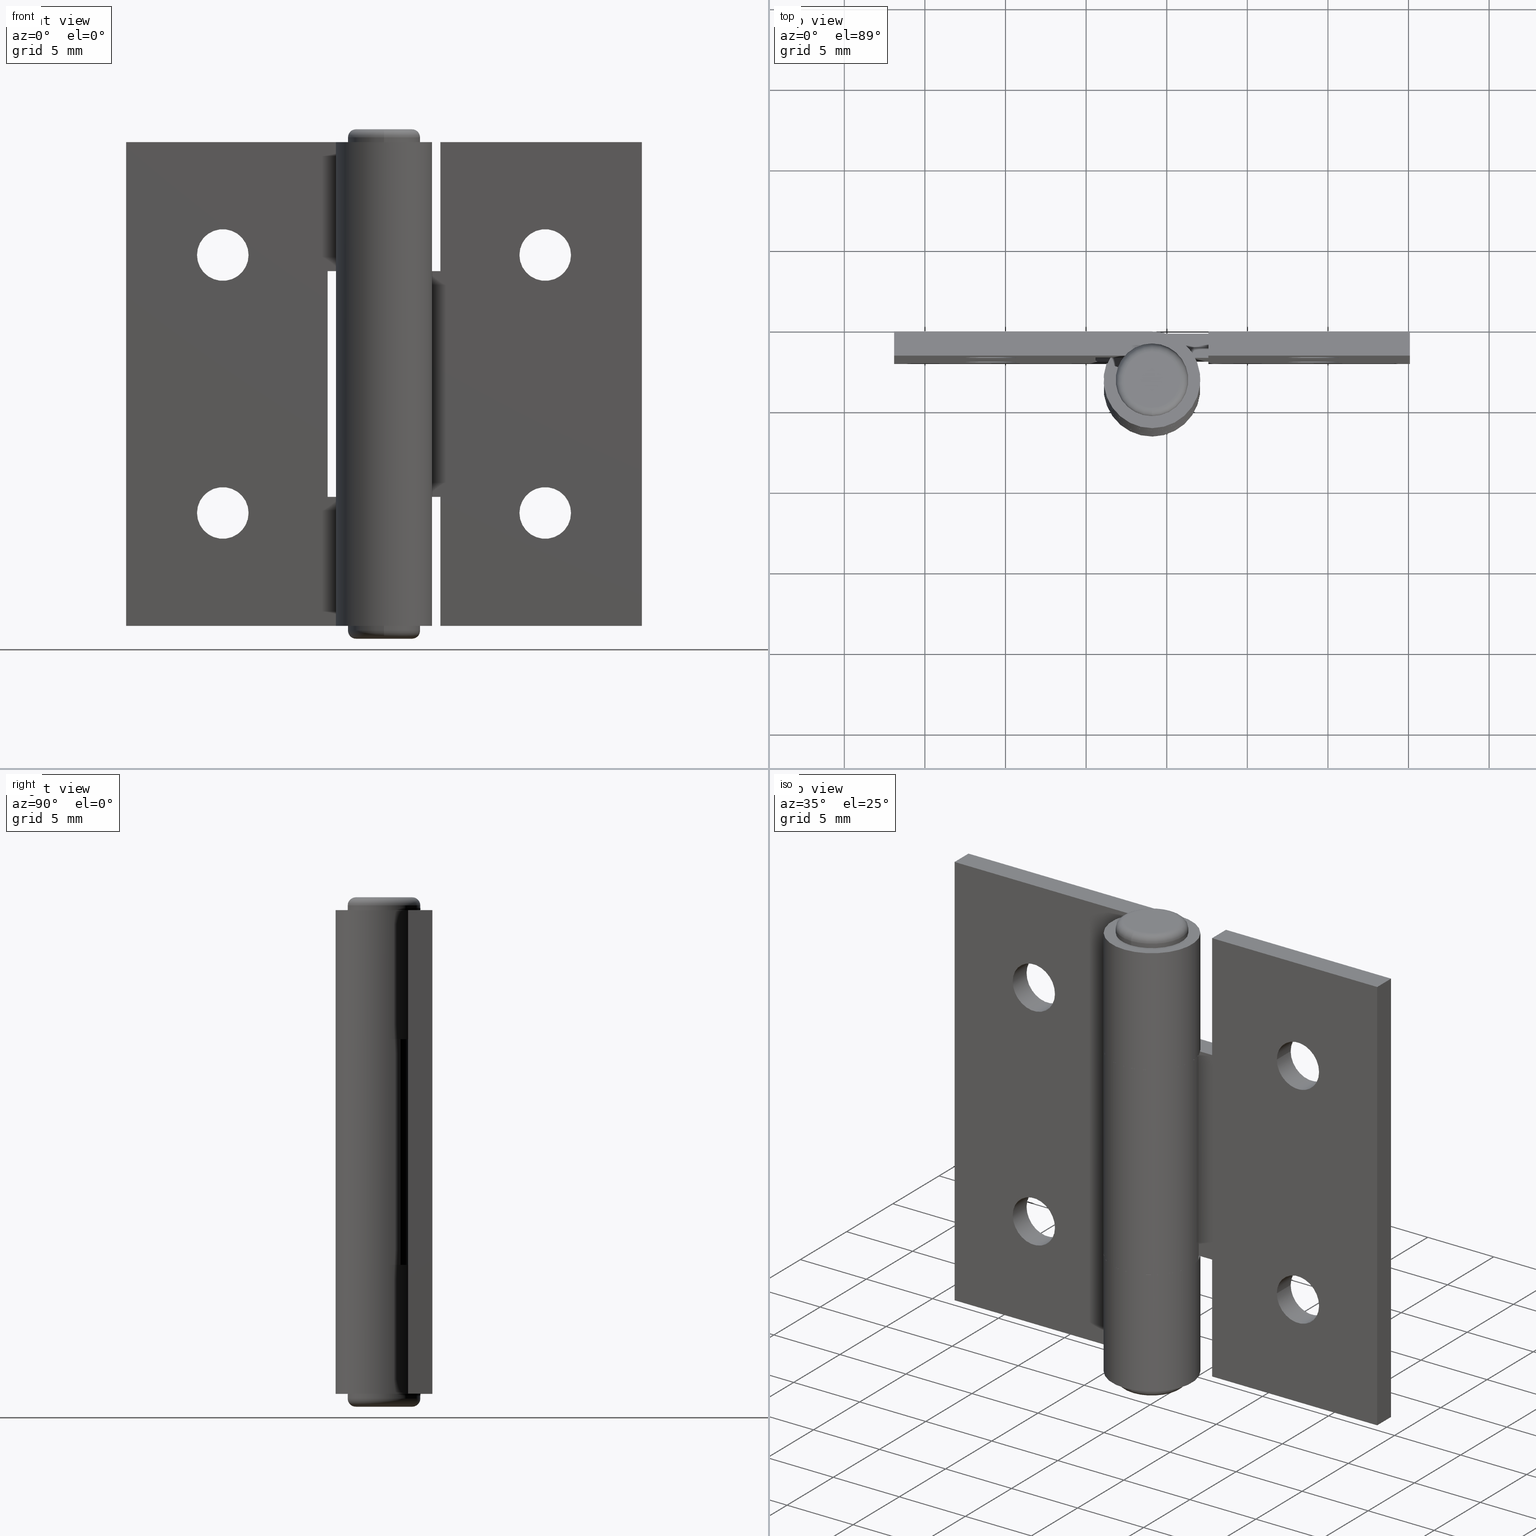
[diagram: canonical four-view strip — front | top / right | iso, engineering-drawing reading convention]
A machine part, canonical four-view strip (front | top / right | iso — engineering-drawing reading convention). The complete STEP part file that produces these views, byte-faithful:
ISO-10303-21;
HEADER;
/* Generated by software containing ST-Developer
 * from STEP Tools, Inc. (www.steptools.com) 
 */

FILE_DESCRIPTION(
/* description */ (''),
/* implementation_level */ '2;1');

FILE_NAME(
/* name */ '\\\\SYNOLOGYNAS\\web\\db2\\HG3032-15\\HG3032-15.stp',
/* time_stamp */ '2025-10-27T19:23:56+09:00',
/* author */ ('user'),
/* organization */ (''),
/* preprocessor_version */ 'ST-DEVELOPER v15.6',
/* originating_system */ 'Autodesk Inventor 2015',
/* authorisation */ '');

FILE_SCHEMA (('AUTOMOTIVE_DESIGN { 1 0 10303 214 3 1 1 }'));
ENDSEC;

DATA;
#10=MECHANICAL_DESIGN_GEOMETRIC_PRESENTATION_REPRESENTATION('',(#25,#27,
#26),#1131);
#11=ITEM_DEFINED_TRANSFORMATION($,$,#668,#738);
#12=ITEM_DEFINED_TRANSFORMATION($,$,#691,#739);
#13=(
REPRESENTATION_RELATIONSHIP($,$,#1146,#1148)
REPRESENTATION_RELATIONSHIP_WITH_TRANSFORMATION(#11)
SHAPE_REPRESENTATION_RELATIONSHIP()
);
#14=(
REPRESENTATION_RELATIONSHIP($,$,#1147,#1148)
REPRESENTATION_RELATIONSHIP_WITH_TRANSFORMATION(#12)
SHAPE_REPRESENTATION_RELATIONSHIP()
);
#15=CONTEXT_DEPENDENT_SHAPE_REPRESENTATION(#13,#1144);
#16=CONTEXT_DEPENDENT_SHAPE_REPRESENTATION(#14,#1145);
#17=NEXT_ASSEMBLY_USAGE_OCCURRENCE('HG3032-15-P1:1',$,$,#1152,#1150,$);
#18=NEXT_ASSEMBLY_USAGE_OCCURRENCE('HG3032-15-P2:1',$,$,#1152,#1151,$);
#19=TOROIDAL_SURFACE('',#720,1.75,0.5);
#20=TOROIDAL_SURFACE('',#726,1.75,0.5);
#21=SHAPE_REPRESENTATION_RELATIONSHIP('SRR','None',#1146,#23);
#22=SHAPE_REPRESENTATION_RELATIONSHIP('SRR','None',#1147,#24);
#23=ADVANCED_BREP_SHAPE_REPRESENTATION($,(#28),#1128);
#24=ADVANCED_BREP_SHAPE_REPRESENTATION($,(#29,#30),#1129);
#25=STYLED_ITEM('',(#1166),#28);
#26=STYLED_ITEM('',(#1167),#29);
#27=STYLED_ITEM('',(#1167),#30);
#28=MANIFOLD_SOLID_BREP('\X2\C194B9ACB4DC\X0\1',#665);
#29=MANIFOLD_SOLID_BREP('\X2\C194B9ACB4DC\X0\1',#666);
#30=MANIFOLD_SOLID_BREP('\X2\C194B9ACB4DC\X0\3',#667);
#31=LINE('',#952,#85);
#32=LINE('',#954,#86);
#33=LINE('',#956,#87);
#34=LINE('',#957,#88);
#35=LINE('',#960,#89);
#36=LINE('',#964,#90);
#37=LINE('',#967,#91);
#38=LINE('',#971,#92);
#39=LINE('',#973,#93);
#40=LINE('',#975,#94);
#41=LINE('',#979,#95);
#42=LINE('',#983,#96);
#43=LINE('',#985,#97);
#44=LINE('',#986,#98);
#45=LINE('',#989,#99);
#46=LINE('',#991,#100);
#47=LINE('',#992,#101);
#48=LINE('',#995,#102);
#49=LINE('',#996,#103);
#50=LINE('',#997,#104);
#51=LINE('',#999,#105);
#52=LINE('',#1001,#106);
#53=LINE('',#1002,#107);
#54=LINE('',#1004,#108);
#55=LINE('',#1007,#109);
#56=LINE('',#1009,#110);
#57=LINE('',#1025,#111);
#58=LINE('',#1027,#112);
#59=LINE('',#1029,#113);
#60=LINE('',#1030,#114);
#61=LINE('',#1033,#115);
#62=LINE('',#1035,#116);
#63=LINE('',#1039,#117);
#64=LINE('',#1043,#118);
#65=LINE('',#1047,#119);
#66=LINE('',#1050,#120);
#67=LINE('',#1053,#121);
#68=LINE('',#1055,#122);
#69=LINE('',#1057,#123);
#70=LINE('',#1059,#124);
#71=LINE('',#1060,#125);
#72=LINE('',#1063,#126);
#73=LINE('',#1067,#127);
#74=LINE('',#1068,#128);
#75=LINE('',#1071,#129);
#76=LINE('',#1075,#130);
#77=LINE('',#1076,#131);
#78=LINE('',#1079,#132);
#79=LINE('',#1081,#133);
#80=LINE('',#1082,#134);
#81=LINE('',#1084,#135);
#82=LINE('',#1089,#136);
#83=LINE('',#1092,#137);
#84=LINE('',#1094,#138);
#85=VECTOR('',#756,8.);
#86=VECTOR('',#757,1.5);
#87=VECTOR('',#758,8.);
#88=VECTOR('',#759,1.5);
#89=VECTOR('',#762,3.5);
#90=VECTOR('',#765,1.5);
#91=VECTOR('',#768,3.5);
#92=VECTOR('',#771,3.5);
#93=VECTOR('',#772,1.5);
#94=VECTOR('',#773,3.5);
#95=VECTOR('',#776,1.5);
#96=VECTOR('',#781,8.);
#97=VECTOR('',#782,1.5);
#98=VECTOR('',#783,8.);
#99=VECTOR('',#786,12.5);
#100=VECTOR('',#787,1.5);
#101=VECTOR('',#788,12.5);
#102=VECTOR('',#791,30.);
#103=VECTOR('',#792,12.5);
#104=VECTOR('',#793,14.);
#105=VECTOR('',#796,14.);
#106=VECTOR('',#797,12.5);
#107=VECTOR('',#798,30.);
#108=VECTOR('',#801,1.5);
#109=VECTOR('',#806,14.);
#110=VECTOR('',#809,14.);
#111=VECTOR('',#828,14.);
#112=VECTOR('',#829,1.5);
#113=VECTOR('',#830,14.);
#114=VECTOR('',#831,1.5);
#115=VECTOR('',#834,3.5);
#116=VECTOR('',#835,3.5);
#117=VECTOR('',#838,1.5);
#118=VECTOR('',#843,3.5);
#119=VECTOR('',#846,1.5);
#120=VECTOR('',#849,3.5);
#121=VECTOR('',#852,8.);
#122=VECTOR('',#853,16.);
#123=VECTOR('',#854,30.);
#124=VECTOR('',#855,16.);
#125=VECTOR('',#856,8.);
#126=VECTOR('',#859,8.);
#127=VECTOR('',#864,8.);
#128=VECTOR('',#865,1.5);
#129=VECTOR('',#868,8.);
#130=VECTOR('',#873,16.);
#131=VECTOR('',#874,1.5);
#132=VECTOR('',#877,8.);
#133=VECTOR('',#878,16.);
#134=VECTOR('',#879,30.);
#135=VECTOR('',#882,1.5);
#136=VECTOR('',#887,1.5);
#137=VECTOR('',#892,8.);
#138=VECTOR('',#895,8.);
#139=PLANE('',#675);
#140=PLANE('',#676);
#141=PLANE('',#679);
#142=PLANE('',#682);
#143=PLANE('',#683);
#144=PLANE('',#684);
#145=PLANE('',#685);
#146=PLANE('',#686);
#147=PLANE('',#687);
#148=PLANE('',#690);
#149=PLANE('',#698);
#150=PLANE('',#699);
#151=PLANE('',#702);
#152=PLANE('',#705);
#153=PLANE('',#708);
#154=PLANE('',#711);
#155=PLANE('',#712);
#156=PLANE('',#713);
#157=PLANE('',#714);
#158=PLANE('',#719);
#159=PLANE('',#725);
#160=PLANE('',#729);
#161=PLANE('',#735);
#162=PLANE('',#736);
#163=FACE_BOUND('',#222,.T.);
#164=FACE_BOUND('',#224,.T.);
#165=FACE_BOUND('',#231,.T.);
#166=FACE_BOUND('',#232,.T.);
#167=FACE_BOUND('',#234,.T.);
#168=FACE_BOUND('',#235,.T.);
#169=FACE_BOUND('',#242,.T.);
#170=FACE_BOUND('',#244,.T.);
#171=FACE_BOUND('',#249,.T.);
#172=FACE_BOUND('',#250,.T.);
#173=FACE_BOUND('',#256,.T.);
#174=FACE_BOUND('',#257,.T.);
#175=FACE_BOUND('',#264,.T.);
#176=FACE_BOUND('',#266,.T.);
#177=FACE_BOUND('',#269,.T.);
#178=FACE_BOUND('',#272,.T.);
#179=FACE_BOUND('',#274,.T.);
#180=FACE_BOUND('',#276,.T.);
#181=FACE_BOUND('',#278,.T.);
#182=FACE_OUTER_BOUND('',#221,.T.);
#183=FACE_OUTER_BOUND('',#223,.T.);
#184=FACE_OUTER_BOUND('',#225,.T.);
#185=FACE_OUTER_BOUND('',#226,.T.);
#186=FACE_OUTER_BOUND('',#227,.T.);
#187=FACE_OUTER_BOUND('',#228,.T.);
#188=FACE_OUTER_BOUND('',#229,.T.);
#189=FACE_OUTER_BOUND('',#230,.T.);
#190=FACE_OUTER_BOUND('',#233,.T.);
#191=FACE_OUTER_BOUND('',#236,.T.);
#192=FACE_OUTER_BOUND('',#237,.T.);
#193=FACE_OUTER_BOUND('',#238,.T.);
#194=FACE_OUTER_BOUND('',#239,.T.);
#195=FACE_OUTER_BOUND('',#240,.T.);
#196=FACE_OUTER_BOUND('',#241,.T.);
#197=FACE_OUTER_BOUND('',#243,.T.);
#198=FACE_OUTER_BOUND('',#245,.T.);
#199=FACE_OUTER_BOUND('',#246,.T.);
#200=FACE_OUTER_BOUND('',#247,.T.);
#201=FACE_OUTER_BOUND('',#248,.T.);
#202=FACE_OUTER_BOUND('',#251,.T.);
#203=FACE_OUTER_BOUND('',#252,.T.);
#204=FACE_OUTER_BOUND('',#253,.T.);
#205=FACE_OUTER_BOUND('',#254,.T.);
#206=FACE_OUTER_BOUND('',#255,.T.);
#207=FACE_OUTER_BOUND('',#258,.T.);
#208=FACE_OUTER_BOUND('',#259,.T.);
#209=FACE_OUTER_BOUND('',#260,.T.);
#210=FACE_OUTER_BOUND('',#261,.T.);
#211=FACE_OUTER_BOUND('',#262,.T.);
#212=FACE_OUTER_BOUND('',#263,.T.);
#213=FACE_OUTER_BOUND('',#265,.T.);
#214=FACE_OUTER_BOUND('',#267,.T.);
#215=FACE_OUTER_BOUND('',#268,.T.);
#216=FACE_OUTER_BOUND('',#270,.T.);
#217=FACE_OUTER_BOUND('',#271,.T.);
#218=FACE_OUTER_BOUND('',#273,.T.);
#219=FACE_OUTER_BOUND('',#275,.T.);
#220=FACE_OUTER_BOUND('',#277,.T.);
#221=EDGE_LOOP('',(#449));
#222=EDGE_LOOP('',(#450));
#223=EDGE_LOOP('',(#451));
#224=EDGE_LOOP('',(#452));
#225=EDGE_LOOP('',(#453,#454,#455,#456));
#226=EDGE_LOOP('',(#457,#458,#459,#460,#461,#462));
#227=EDGE_LOOP('',(#463,#464,#465,#466,#467,#468));
#228=EDGE_LOOP('',(#469,#470,#471,#472));
#229=EDGE_LOOP('',(#473,#474,#475,#476));
#230=EDGE_LOOP('',(#477,#478,#479,#480,#481,#482,#483,#484));
#231=EDGE_LOOP('',(#485));
#232=EDGE_LOOP('',(#486));
#233=EDGE_LOOP('',(#487,#488,#489,#490,#491,#492,#493,#494));
#234=EDGE_LOOP('',(#495));
#235=EDGE_LOOP('',(#496));
#236=EDGE_LOOP('',(#497,#498,#499,#500));
#237=EDGE_LOOP('',(#501,#502,#503,#504));
#238=EDGE_LOOP('',(#505,#506,#507,#508));
#239=EDGE_LOOP('',(#509,#510,#511,#512));
#240=EDGE_LOOP('',(#513,#514,#515,#516));
#241=EDGE_LOOP('',(#517));
#242=EDGE_LOOP('',(#518));
#243=EDGE_LOOP('',(#519));
#244=EDGE_LOOP('',(#520));
#245=EDGE_LOOP('',(#521,#522,#523,#524));
#246=EDGE_LOOP('',(#525,#526,#527,#528,#529,#530));
#247=EDGE_LOOP('',(#531,#532,#533,#534,#535,#536));
#248=EDGE_LOOP('',(#537,#538,#539,#540,#541,#542,#543,#544));
#249=EDGE_LOOP('',(#545));
#250=EDGE_LOOP('',(#546));
#251=EDGE_LOOP('',(#547,#548,#549,#550));
#252=EDGE_LOOP('',(#551,#552,#553,#554));
#253=EDGE_LOOP('',(#555,#556,#557,#558));
#254=EDGE_LOOP('',(#559,#560,#561,#562,#563,#564));
#255=EDGE_LOOP('',(#565,#566,#567,#568,#569,#570,#571,#572));
#256=EDGE_LOOP('',(#573));
#257=EDGE_LOOP('',(#574));
#258=EDGE_LOOP('',(#575,#576,#577,#578));
#259=EDGE_LOOP('',(#579,#580,#581,#582,#583,#584));
#260=EDGE_LOOP('',(#585,#586,#587,#588));
#261=EDGE_LOOP('',(#589,#590,#591,#592));
#262=EDGE_LOOP('',(#593,#594,#595,#596));
#263=EDGE_LOOP('',(#597));
#264=EDGE_LOOP('',(#598));
#265=EDGE_LOOP('',(#599));
#266=EDGE_LOOP('',(#600));
#267=EDGE_LOOP('',(#601));
#268=EDGE_LOOP('',(#602));
#269=EDGE_LOOP('',(#603));
#270=EDGE_LOOP('',(#604));
#271=EDGE_LOOP('',(#605));
#272=EDGE_LOOP('',(#606));
#273=EDGE_LOOP('',(#607));
#274=EDGE_LOOP('',(#608));
#275=EDGE_LOOP('',(#609));
#276=EDGE_LOOP('',(#610));
#277=EDGE_LOOP('',(#611));
#278=EDGE_LOOP('',(#612));
#279=CIRCLE('',#670,1.6);
#280=CIRCLE('',#671,1.6);
#281=CIRCLE('',#673,1.6);
#282=CIRCLE('',#674,1.6);
#283=CIRCLE('',#677,1.5);
#284=CIRCLE('',#678,3.);
#285=CIRCLE('',#680,3.);
#286=CIRCLE('',#681,1.5);
#287=CIRCLE('',#693,1.6);
#288=CIRCLE('',#694,1.6);
#289=CIRCLE('',#696,1.6);
#290=CIRCLE('',#697,1.6);
#291=CIRCLE('',#700,3.);
#292=CIRCLE('',#701,1.5);
#293=CIRCLE('',#703,1.5);
#294=CIRCLE('',#704,3.);
#295=CIRCLE('',#707,1.5);
#296=CIRCLE('',#710,3.);
#297=CIRCLE('',#715,3.);
#298=CIRCLE('',#716,1.5);
#299=CIRCLE('',#721,2.25);
#300=CIRCLE('',#722,1.75);
#301=CIRCLE('',#724,2.25);
#302=CIRCLE('',#727,1.75);
#303=CIRCLE('',#728,2.25);
#304=CIRCLE('',#731,2.25);
#305=CIRCLE('',#733,1.5);
#306=CIRCLE('',#734,1.5);
#307=VERTEX_POINT('',#940);
#308=VERTEX_POINT('',#942);
#309=VERTEX_POINT('',#945);
#310=VERTEX_POINT('',#947);
#311=VERTEX_POINT('',#950);
#312=VERTEX_POINT('',#951);
#313=VERTEX_POINT('',#953);
#314=VERTEX_POINT('',#955);
#315=VERTEX_POINT('',#959);
#316=VERTEX_POINT('',#961);
#317=VERTEX_POINT('',#963);
#318=VERTEX_POINT('',#965);
#319=VERTEX_POINT('',#969);
#320=VERTEX_POINT('',#970);
#321=VERTEX_POINT('',#972);
#322=VERTEX_POINT('',#974);
#323=VERTEX_POINT('',#976);
#324=VERTEX_POINT('',#978);
#325=VERTEX_POINT('',#982);
#326=VERTEX_POINT('',#984);
#327=VERTEX_POINT('',#988);
#328=VERTEX_POINT('',#990);
#329=VERTEX_POINT('',#994);
#330=VERTEX_POINT('',#1000);
#331=VERTEX_POINT('',#1013);
#332=VERTEX_POINT('',#1015);
#333=VERTEX_POINT('',#1018);
#334=VERTEX_POINT('',#1020);
#335=VERTEX_POINT('',#1023);
#336=VERTEX_POINT('',#1024);
#337=VERTEX_POINT('',#1026);
#338=VERTEX_POINT('',#1028);
#339=VERTEX_POINT('',#1032);
#340=VERTEX_POINT('',#1034);
#341=VERTEX_POINT('',#1036);
#342=VERTEX_POINT('',#1038);
#343=VERTEX_POINT('',#1042);
#344=VERTEX_POINT('',#1044);
#345=VERTEX_POINT('',#1046);
#346=VERTEX_POINT('',#1048);
#347=VERTEX_POINT('',#1052);
#348=VERTEX_POINT('',#1054);
#349=VERTEX_POINT('',#1056);
#350=VERTEX_POINT('',#1058);
#351=VERTEX_POINT('',#1062);
#352=VERTEX_POINT('',#1066);
#353=VERTEX_POINT('',#1070);
#354=VERTEX_POINT('',#1074);
#355=VERTEX_POINT('',#1078);
#356=VERTEX_POINT('',#1080);
#357=VERTEX_POINT('',#1086);
#358=VERTEX_POINT('',#1088);
#359=VERTEX_POINT('',#1097);
#360=VERTEX_POINT('',#1099);
#361=VERTEX_POINT('',#1102);
#362=VERTEX_POINT('',#1106);
#363=VERTEX_POINT('',#1108);
#364=VERTEX_POINT('',#1112);
#365=VERTEX_POINT('',#1115);
#366=VERTEX_POINT('',#1117);
#367=EDGE_CURVE('',#307,#307,#279,.T.);
#368=EDGE_CURVE('',#308,#308,#280,.T.);
#369=EDGE_CURVE('',#309,#309,#281,.T.);
#370=EDGE_CURVE('',#310,#310,#282,.T.);
#371=EDGE_CURVE('',#311,#312,#31,.T.);
#372=EDGE_CURVE('',#313,#311,#32,.T.);
#373=EDGE_CURVE('',#314,#313,#33,.T.);
#374=EDGE_CURVE('',#312,#314,#34,.T.);
#375=EDGE_CURVE('',#315,#311,#35,.T.);
#376=EDGE_CURVE('',#316,#315,#283,.T.);
#377=EDGE_CURVE('',#317,#316,#36,.T.);
#378=EDGE_CURVE('',#318,#317,#284,.T.);
#379=EDGE_CURVE('',#313,#318,#37,.T.);
#380=EDGE_CURVE('',#319,#320,#38,.T.);
#381=EDGE_CURVE('',#321,#319,#39,.T.);
#382=EDGE_CURVE('',#322,#321,#40,.T.);
#383=EDGE_CURVE('',#323,#322,#285,.T.);
#384=EDGE_CURVE('',#324,#323,#41,.T.);
#385=EDGE_CURVE('',#320,#324,#286,.T.);
#386=EDGE_CURVE('',#325,#319,#42,.T.);
#387=EDGE_CURVE('',#326,#325,#43,.T.);
#388=EDGE_CURVE('',#321,#326,#44,.T.);
#389=EDGE_CURVE('',#314,#327,#45,.T.);
#390=EDGE_CURVE('',#327,#328,#46,.T.);
#391=EDGE_CURVE('',#328,#312,#47,.T.);
#392=EDGE_CURVE('',#328,#329,#48,.T.);
#393=EDGE_CURVE('',#325,#329,#49,.T.);
#394=EDGE_CURVE('',#320,#315,#50,.T.);
#395=EDGE_CURVE('',#318,#322,#51,.T.);
#396=EDGE_CURVE('',#330,#326,#52,.T.);
#397=EDGE_CURVE('',#327,#330,#53,.T.);
#398=EDGE_CURVE('',#329,#330,#54,.T.);
#399=EDGE_CURVE('',#317,#323,#55,.T.);
#400=EDGE_CURVE('',#316,#324,#56,.T.);
#401=EDGE_CURVE('',#331,#331,#287,.T.);
#402=EDGE_CURVE('',#332,#332,#288,.T.);
#403=EDGE_CURVE('',#333,#333,#289,.T.);
#404=EDGE_CURVE('',#334,#334,#290,.T.);
#405=EDGE_CURVE('',#335,#336,#57,.T.);
#406=EDGE_CURVE('',#337,#335,#58,.T.);
#407=EDGE_CURVE('',#338,#337,#59,.T.);
#408=EDGE_CURVE('',#338,#336,#60,.T.);
#409=EDGE_CURVE('',#336,#339,#61,.T.);
#410=EDGE_CURVE('',#340,#338,#62,.T.);
#411=EDGE_CURVE('',#341,#340,#291,.T.);
#412=EDGE_CURVE('',#342,#341,#63,.T.);
#413=EDGE_CURVE('',#339,#342,#292,.T.);
#414=EDGE_CURVE('',#343,#335,#64,.T.);
#415=EDGE_CURVE('',#344,#343,#293,.T.);
#416=EDGE_CURVE('',#345,#344,#65,.T.);
#417=EDGE_CURVE('',#346,#345,#294,.T.);
#418=EDGE_CURVE('',#337,#346,#66,.T.);
#419=EDGE_CURVE('',#339,#347,#67,.T.);
#420=EDGE_CURVE('',#348,#347,#68,.T.);
#421=EDGE_CURVE('',#348,#349,#69,.T.);
#422=EDGE_CURVE('',#350,#349,#70,.T.);
#423=EDGE_CURVE('',#350,#343,#71,.T.);
#424=EDGE_CURVE('',#351,#342,#72,.T.);
#425=EDGE_CURVE('',#347,#351,#295,.T.);
#426=EDGE_CURVE('',#352,#341,#73,.T.);
#427=EDGE_CURVE('',#351,#352,#74,.T.);
#428=EDGE_CURVE('',#353,#340,#75,.T.);
#429=EDGE_CURVE('',#352,#353,#296,.T.);
#430=EDGE_CURVE('',#353,#354,#76,.T.);
#431=EDGE_CURVE('',#354,#348,#77,.T.);
#432=EDGE_CURVE('',#346,#355,#78,.T.);
#433=EDGE_CURVE('',#356,#355,#79,.T.);
#434=EDGE_CURVE('',#354,#356,#80,.T.);
#435=EDGE_CURVE('',#349,#356,#81,.T.);
#436=EDGE_CURVE('',#355,#357,#297,.T.);
#437=EDGE_CURVE('',#357,#358,#82,.T.);
#438=EDGE_CURVE('',#358,#350,#298,.T.);
#439=EDGE_CURVE('',#345,#357,#83,.T.);
#440=EDGE_CURVE('',#344,#358,#84,.T.);
#441=EDGE_CURVE('',#359,#359,#299,.T.);
#442=EDGE_CURVE('',#360,#360,#300,.T.);
#443=EDGE_CURVE('',#361,#361,#301,.T.);
#444=EDGE_CURVE('',#362,#362,#302,.T.);
#445=EDGE_CURVE('',#363,#363,#303,.T.);
#446=EDGE_CURVE('',#364,#364,#304,.T.);
#447=EDGE_CURVE('',#365,#365,#305,.T.);
#448=EDGE_CURVE('',#366,#366,#306,.T.);
#449=ORIENTED_EDGE('',*,*,#367,.F.);
#450=ORIENTED_EDGE('',*,*,#368,.F.);
#451=ORIENTED_EDGE('',*,*,#369,.F.);
#452=ORIENTED_EDGE('',*,*,#370,.F.);
#453=ORIENTED_EDGE('',*,*,#371,.F.);
#454=ORIENTED_EDGE('',*,*,#372,.F.);
#455=ORIENTED_EDGE('',*,*,#373,.F.);
#456=ORIENTED_EDGE('',*,*,#374,.F.);
#457=ORIENTED_EDGE('',*,*,#375,.F.);
#458=ORIENTED_EDGE('',*,*,#376,.F.);
#459=ORIENTED_EDGE('',*,*,#377,.F.);
#460=ORIENTED_EDGE('',*,*,#378,.F.);
#461=ORIENTED_EDGE('',*,*,#379,.F.);
#462=ORIENTED_EDGE('',*,*,#372,.T.);
#463=ORIENTED_EDGE('',*,*,#380,.F.);
#464=ORIENTED_EDGE('',*,*,#381,.F.);
#465=ORIENTED_EDGE('',*,*,#382,.F.);
#466=ORIENTED_EDGE('',*,*,#383,.F.);
#467=ORIENTED_EDGE('',*,*,#384,.F.);
#468=ORIENTED_EDGE('',*,*,#385,.F.);
#469=ORIENTED_EDGE('',*,*,#386,.F.);
#470=ORIENTED_EDGE('',*,*,#387,.F.);
#471=ORIENTED_EDGE('',*,*,#388,.F.);
#472=ORIENTED_EDGE('',*,*,#381,.T.);
#473=ORIENTED_EDGE('',*,*,#374,.T.);
#474=ORIENTED_EDGE('',*,*,#389,.T.);
#475=ORIENTED_EDGE('',*,*,#390,.T.);
#476=ORIENTED_EDGE('',*,*,#391,.T.);
#477=ORIENTED_EDGE('',*,*,#375,.T.);
#478=ORIENTED_EDGE('',*,*,#371,.T.);
#479=ORIENTED_EDGE('',*,*,#391,.F.);
#480=ORIENTED_EDGE('',*,*,#392,.T.);
#481=ORIENTED_EDGE('',*,*,#393,.F.);
#482=ORIENTED_EDGE('',*,*,#386,.T.);
#483=ORIENTED_EDGE('',*,*,#380,.T.);
#484=ORIENTED_EDGE('',*,*,#394,.T.);
#485=ORIENTED_EDGE('',*,*,#368,.T.);
#486=ORIENTED_EDGE('',*,*,#370,.T.);
#487=ORIENTED_EDGE('',*,*,#373,.T.);
#488=ORIENTED_EDGE('',*,*,#379,.T.);
#489=ORIENTED_EDGE('',*,*,#395,.T.);
#490=ORIENTED_EDGE('',*,*,#382,.T.);
#491=ORIENTED_EDGE('',*,*,#388,.T.);
#492=ORIENTED_EDGE('',*,*,#396,.F.);
#493=ORIENTED_EDGE('',*,*,#397,.F.);
#494=ORIENTED_EDGE('',*,*,#389,.F.);
#495=ORIENTED_EDGE('',*,*,#367,.T.);
#496=ORIENTED_EDGE('',*,*,#369,.T.);
#497=ORIENTED_EDGE('',*,*,#397,.T.);
#498=ORIENTED_EDGE('',*,*,#398,.F.);
#499=ORIENTED_EDGE('',*,*,#392,.F.);
#500=ORIENTED_EDGE('',*,*,#390,.F.);
#501=ORIENTED_EDGE('',*,*,#387,.T.);
#502=ORIENTED_EDGE('',*,*,#393,.T.);
#503=ORIENTED_EDGE('',*,*,#398,.T.);
#504=ORIENTED_EDGE('',*,*,#396,.T.);
#505=ORIENTED_EDGE('',*,*,#378,.T.);
#506=ORIENTED_EDGE('',*,*,#399,.T.);
#507=ORIENTED_EDGE('',*,*,#383,.T.);
#508=ORIENTED_EDGE('',*,*,#395,.F.);
#509=ORIENTED_EDGE('',*,*,#376,.T.);
#510=ORIENTED_EDGE('',*,*,#394,.F.);
#511=ORIENTED_EDGE('',*,*,#385,.T.);
#512=ORIENTED_EDGE('',*,*,#400,.F.);
#513=ORIENTED_EDGE('',*,*,#377,.T.);
#514=ORIENTED_EDGE('',*,*,#400,.T.);
#515=ORIENTED_EDGE('',*,*,#384,.T.);
#516=ORIENTED_EDGE('',*,*,#399,.F.);
#517=ORIENTED_EDGE('',*,*,#401,.F.);
#518=ORIENTED_EDGE('',*,*,#402,.F.);
#519=ORIENTED_EDGE('',*,*,#403,.F.);
#520=ORIENTED_EDGE('',*,*,#404,.F.);
#521=ORIENTED_EDGE('',*,*,#405,.F.);
#522=ORIENTED_EDGE('',*,*,#406,.F.);
#523=ORIENTED_EDGE('',*,*,#407,.F.);
#524=ORIENTED_EDGE('',*,*,#408,.T.);
#525=ORIENTED_EDGE('',*,*,#409,.F.);
#526=ORIENTED_EDGE('',*,*,#408,.F.);
#527=ORIENTED_EDGE('',*,*,#410,.F.);
#528=ORIENTED_EDGE('',*,*,#411,.F.);
#529=ORIENTED_EDGE('',*,*,#412,.F.);
#530=ORIENTED_EDGE('',*,*,#413,.F.);
#531=ORIENTED_EDGE('',*,*,#414,.F.);
#532=ORIENTED_EDGE('',*,*,#415,.F.);
#533=ORIENTED_EDGE('',*,*,#416,.F.);
#534=ORIENTED_EDGE('',*,*,#417,.F.);
#535=ORIENTED_EDGE('',*,*,#418,.F.);
#536=ORIENTED_EDGE('',*,*,#406,.T.);
#537=ORIENTED_EDGE('',*,*,#414,.T.);
#538=ORIENTED_EDGE('',*,*,#405,.T.);
#539=ORIENTED_EDGE('',*,*,#409,.T.);
#540=ORIENTED_EDGE('',*,*,#419,.T.);
#541=ORIENTED_EDGE('',*,*,#420,.F.);
#542=ORIENTED_EDGE('',*,*,#421,.T.);
#543=ORIENTED_EDGE('',*,*,#422,.F.);
#544=ORIENTED_EDGE('',*,*,#423,.T.);
#545=ORIENTED_EDGE('',*,*,#402,.T.);
#546=ORIENTED_EDGE('',*,*,#404,.T.);
#547=ORIENTED_EDGE('',*,*,#413,.T.);
#548=ORIENTED_EDGE('',*,*,#424,.F.);
#549=ORIENTED_EDGE('',*,*,#425,.F.);
#550=ORIENTED_EDGE('',*,*,#419,.F.);
#551=ORIENTED_EDGE('',*,*,#412,.T.);
#552=ORIENTED_EDGE('',*,*,#426,.F.);
#553=ORIENTED_EDGE('',*,*,#427,.F.);
#554=ORIENTED_EDGE('',*,*,#424,.T.);
#555=ORIENTED_EDGE('',*,*,#411,.T.);
#556=ORIENTED_EDGE('',*,*,#428,.F.);
#557=ORIENTED_EDGE('',*,*,#429,.F.);
#558=ORIENTED_EDGE('',*,*,#426,.T.);
#559=ORIENTED_EDGE('',*,*,#430,.T.);
#560=ORIENTED_EDGE('',*,*,#431,.T.);
#561=ORIENTED_EDGE('',*,*,#420,.T.);
#562=ORIENTED_EDGE('',*,*,#425,.T.);
#563=ORIENTED_EDGE('',*,*,#427,.T.);
#564=ORIENTED_EDGE('',*,*,#429,.T.);
#565=ORIENTED_EDGE('',*,*,#418,.T.);
#566=ORIENTED_EDGE('',*,*,#432,.T.);
#567=ORIENTED_EDGE('',*,*,#433,.F.);
#568=ORIENTED_EDGE('',*,*,#434,.F.);
#569=ORIENTED_EDGE('',*,*,#430,.F.);
#570=ORIENTED_EDGE('',*,*,#428,.T.);
#571=ORIENTED_EDGE('',*,*,#410,.T.);
#572=ORIENTED_EDGE('',*,*,#407,.T.);
#573=ORIENTED_EDGE('',*,*,#401,.T.);
#574=ORIENTED_EDGE('',*,*,#403,.T.);
#575=ORIENTED_EDGE('',*,*,#434,.T.);
#576=ORIENTED_EDGE('',*,*,#435,.F.);
#577=ORIENTED_EDGE('',*,*,#421,.F.);
#578=ORIENTED_EDGE('',*,*,#431,.F.);
#579=ORIENTED_EDGE('',*,*,#422,.T.);
#580=ORIENTED_EDGE('',*,*,#435,.T.);
#581=ORIENTED_EDGE('',*,*,#433,.T.);
#582=ORIENTED_EDGE('',*,*,#436,.T.);
#583=ORIENTED_EDGE('',*,*,#437,.T.);
#584=ORIENTED_EDGE('',*,*,#438,.T.);
#585=ORIENTED_EDGE('',*,*,#417,.T.);
#586=ORIENTED_EDGE('',*,*,#439,.T.);
#587=ORIENTED_EDGE('',*,*,#436,.F.);
#588=ORIENTED_EDGE('',*,*,#432,.F.);
#589=ORIENTED_EDGE('',*,*,#415,.T.);
#590=ORIENTED_EDGE('',*,*,#423,.F.);
#591=ORIENTED_EDGE('',*,*,#438,.F.);
#592=ORIENTED_EDGE('',*,*,#440,.F.);
#593=ORIENTED_EDGE('',*,*,#416,.T.);
#594=ORIENTED_EDGE('',*,*,#440,.T.);
#595=ORIENTED_EDGE('',*,*,#437,.F.);
#596=ORIENTED_EDGE('',*,*,#439,.F.);
#597=ORIENTED_EDGE('',*,*,#441,.T.);
#598=ORIENTED_EDGE('',*,*,#442,.T.);
#599=ORIENTED_EDGE('',*,*,#443,.T.);
#600=ORIENTED_EDGE('',*,*,#441,.F.);
#601=ORIENTED_EDGE('',*,*,#442,.F.);
#602=ORIENTED_EDGE('',*,*,#444,.T.);
#603=ORIENTED_EDGE('',*,*,#445,.T.);
#604=ORIENTED_EDGE('',*,*,#444,.F.);
#605=ORIENTED_EDGE('',*,*,#446,.F.);
#606=ORIENTED_EDGE('',*,*,#445,.F.);
#607=ORIENTED_EDGE('',*,*,#447,.F.);
#608=ORIENTED_EDGE('',*,*,#448,.F.);
#609=ORIENTED_EDGE('',*,*,#446,.T.);
#610=ORIENTED_EDGE('',*,*,#448,.T.);
#611=ORIENTED_EDGE('',*,*,#443,.F.);
#612=ORIENTED_EDGE('',*,*,#447,.T.);
#613=CYLINDRICAL_SURFACE('',#669,1.6);
#614=CYLINDRICAL_SURFACE('',#672,1.6);
#615=CYLINDRICAL_SURFACE('',#688,3.);
#616=CYLINDRICAL_SURFACE('',#689,1.5);
#617=CYLINDRICAL_SURFACE('',#692,1.6);
#618=CYLINDRICAL_SURFACE('',#695,1.6);
#619=CYLINDRICAL_SURFACE('',#706,1.5);
#620=CYLINDRICAL_SURFACE('',#709,3.);
#621=CYLINDRICAL_SURFACE('',#717,3.);
#622=CYLINDRICAL_SURFACE('',#718,1.5);
#623=CYLINDRICAL_SURFACE('',#723,2.25);
#624=CYLINDRICAL_SURFACE('',#730,2.25);
#625=CYLINDRICAL_SURFACE('',#732,1.5);
#626=ADVANCED_FACE('',(#182,#163),#613,.F.);
#627=ADVANCED_FACE('',(#183,#164),#614,.F.);
#628=ADVANCED_FACE('',(#184),#139,.F.);
#629=ADVANCED_FACE('',(#185),#140,.F.);
#630=ADVANCED_FACE('',(#186),#141,.F.);
#631=ADVANCED_FACE('',(#187),#142,.F.);
#632=ADVANCED_FACE('',(#188),#143,.T.);
#633=ADVANCED_FACE('',(#189,#165,#166),#144,.T.);
#634=ADVANCED_FACE('',(#190,#167,#168),#145,.T.);
#635=ADVANCED_FACE('',(#191),#146,.T.);
#636=ADVANCED_FACE('',(#192),#147,.T.);
#637=ADVANCED_FACE('',(#193),#615,.T.);
#638=ADVANCED_FACE('',(#194),#616,.F.);
#639=ADVANCED_FACE('',(#195),#148,.T.);
#640=ADVANCED_FACE('',(#196,#169),#617,.F.);
#641=ADVANCED_FACE('',(#197,#170),#618,.F.);
#642=ADVANCED_FACE('',(#198),#149,.F.);
#643=ADVANCED_FACE('',(#199),#150,.F.);
#644=ADVANCED_FACE('',(#200),#151,.F.);
#645=ADVANCED_FACE('',(#201,#171,#172),#152,.T.);
#646=ADVANCED_FACE('',(#202),#619,.F.);
#647=ADVANCED_FACE('',(#203),#153,.T.);
#648=ADVANCED_FACE('',(#204),#620,.T.);
#649=ADVANCED_FACE('',(#205),#154,.T.);
#650=ADVANCED_FACE('',(#206,#173,#174),#155,.T.);
#651=ADVANCED_FACE('',(#207),#156,.T.);
#652=ADVANCED_FACE('',(#208),#157,.T.);
#653=ADVANCED_FACE('',(#209),#621,.T.);
#654=ADVANCED_FACE('',(#210),#622,.F.);
#655=ADVANCED_FACE('',(#211),#158,.T.);
#656=ADVANCED_FACE('',(#212,#175),#19,.T.);
#657=ADVANCED_FACE('',(#213,#176),#623,.T.);
#658=ADVANCED_FACE('',(#214),#159,.T.);
#659=ADVANCED_FACE('',(#215,#177),#20,.T.);
#660=ADVANCED_FACE('',(#216),#160,.T.);
#661=ADVANCED_FACE('',(#217,#178),#624,.T.);
#662=ADVANCED_FACE('',(#218,#179),#625,.T.);
#663=ADVANCED_FACE('',(#219,#180),#161,.T.);
#664=ADVANCED_FACE('',(#220,#181),#162,.T.);
#665=CLOSED_SHELL('',(#626,#627,#628,#629,#630,#631,#632,#633,#634,#635,
#636,#637,#638,#639));
#666=CLOSED_SHELL('',(#640,#641,#642,#643,#644,#645,#646,#647,#648,#649,
#650,#651,#652,#653,#654,#655));
#667=CLOSED_SHELL('',(#656,#657,#658,#659,#660,#661,#662,#663,#664));
#668=AXIS2_PLACEMENT_3D('placement',#938,#740,#741);
#669=AXIS2_PLACEMENT_3D('',#939,#742,#743);
#670=AXIS2_PLACEMENT_3D('',#941,#744,#745);
#671=AXIS2_PLACEMENT_3D('',#943,#746,#747);
#672=AXIS2_PLACEMENT_3D('',#944,#748,#749);
#673=AXIS2_PLACEMENT_3D('',#946,#750,#751);
#674=AXIS2_PLACEMENT_3D('',#948,#752,#753);
#675=AXIS2_PLACEMENT_3D('',#949,#754,#755);
#676=AXIS2_PLACEMENT_3D('',#958,#760,#761);
#677=AXIS2_PLACEMENT_3D('',#962,#763,#764);
#678=AXIS2_PLACEMENT_3D('',#966,#766,#767);
#679=AXIS2_PLACEMENT_3D('',#968,#769,#770);
#680=AXIS2_PLACEMENT_3D('',#977,#774,#775);
#681=AXIS2_PLACEMENT_3D('',#980,#777,#778);
#682=AXIS2_PLACEMENT_3D('',#981,#779,#780);
#683=AXIS2_PLACEMENT_3D('',#987,#784,#785);
#684=AXIS2_PLACEMENT_3D('',#993,#789,#790);
#685=AXIS2_PLACEMENT_3D('',#998,#794,#795);
#686=AXIS2_PLACEMENT_3D('',#1003,#799,#800);
#687=AXIS2_PLACEMENT_3D('',#1005,#802,#803);
#688=AXIS2_PLACEMENT_3D('',#1006,#804,#805);
#689=AXIS2_PLACEMENT_3D('',#1008,#807,#808);
#690=AXIS2_PLACEMENT_3D('',#1010,#810,#811);
#691=AXIS2_PLACEMENT_3D('placement',#1011,#812,#813);
#692=AXIS2_PLACEMENT_3D('',#1012,#814,#815);
#693=AXIS2_PLACEMENT_3D('',#1014,#816,#817);
#694=AXIS2_PLACEMENT_3D('',#1016,#818,#819);
#695=AXIS2_PLACEMENT_3D('',#1017,#820,#821);
#696=AXIS2_PLACEMENT_3D('',#1019,#822,#823);
#697=AXIS2_PLACEMENT_3D('',#1021,#824,#825);
#698=AXIS2_PLACEMENT_3D('',#1022,#826,#827);
#699=AXIS2_PLACEMENT_3D('',#1031,#832,#833);
#700=AXIS2_PLACEMENT_3D('',#1037,#836,#837);
#701=AXIS2_PLACEMENT_3D('',#1040,#839,#840);
#702=AXIS2_PLACEMENT_3D('',#1041,#841,#842);
#703=AXIS2_PLACEMENT_3D('',#1045,#844,#845);
#704=AXIS2_PLACEMENT_3D('',#1049,#847,#848);
#705=AXIS2_PLACEMENT_3D('',#1051,#850,#851);
#706=AXIS2_PLACEMENT_3D('',#1061,#857,#858);
#707=AXIS2_PLACEMENT_3D('',#1064,#860,#861);
#708=AXIS2_PLACEMENT_3D('',#1065,#862,#863);
#709=AXIS2_PLACEMENT_3D('',#1069,#866,#867);
#710=AXIS2_PLACEMENT_3D('',#1072,#869,#870);
#711=AXIS2_PLACEMENT_3D('',#1073,#871,#872);
#712=AXIS2_PLACEMENT_3D('',#1077,#875,#876);
#713=AXIS2_PLACEMENT_3D('',#1083,#880,#881);
#714=AXIS2_PLACEMENT_3D('',#1085,#883,#884);
#715=AXIS2_PLACEMENT_3D('',#1087,#885,#886);
#716=AXIS2_PLACEMENT_3D('',#1090,#888,#889);
#717=AXIS2_PLACEMENT_3D('',#1091,#890,#891);
#718=AXIS2_PLACEMENT_3D('',#1093,#893,#894);
#719=AXIS2_PLACEMENT_3D('',#1095,#896,#897);
#720=AXIS2_PLACEMENT_3D('',#1096,#898,#899);
#721=AXIS2_PLACEMENT_3D('',#1098,#900,#901);
#722=AXIS2_PLACEMENT_3D('',#1100,#902,#903);
#723=AXIS2_PLACEMENT_3D('',#1101,#904,#905);
#724=AXIS2_PLACEMENT_3D('',#1103,#906,#907);
#725=AXIS2_PLACEMENT_3D('',#1104,#908,#909);
#726=AXIS2_PLACEMENT_3D('',#1105,#910,#911);
#727=AXIS2_PLACEMENT_3D('',#1107,#912,#913);
#728=AXIS2_PLACEMENT_3D('',#1109,#914,#915);
#729=AXIS2_PLACEMENT_3D('',#1110,#916,#917);
#730=AXIS2_PLACEMENT_3D('',#1111,#918,#919);
#731=AXIS2_PLACEMENT_3D('',#1113,#920,#921);
#732=AXIS2_PLACEMENT_3D('',#1114,#922,#923);
#733=AXIS2_PLACEMENT_3D('',#1116,#924,#925);
#734=AXIS2_PLACEMENT_3D('',#1118,#926,#927);
#735=AXIS2_PLACEMENT_3D('',#1119,#928,#929);
#736=AXIS2_PLACEMENT_3D('',#1120,#930,#931);
#737=AXIS2_PLACEMENT_3D('placement',#1121,#932,#933);
#738=AXIS2_PLACEMENT_3D('',#1122,#934,#935);
#739=AXIS2_PLACEMENT_3D('',#1123,#936,#937);
#740=DIRECTION('axis',(0.,0.,1.));
#741=DIRECTION('refdir',(1.,0.,0.));
#742=DIRECTION('center_axis',(-1.38777878078145E-16,1.,0.));
#743=DIRECTION('ref_axis',(1.,1.38777878078145E-16,0.));
#744=DIRECTION('center_axis',(0.,1.,0.));
#745=DIRECTION('ref_axis',(1.,1.38777878078145E-16,0.));
#746=DIRECTION('center_axis',(1.38777878078145E-16,-1.,0.));
#747=DIRECTION('ref_axis',(1.,1.38777878078145E-16,0.));
#748=DIRECTION('center_axis',(-1.38777878078145E-16,1.,0.));
#749=DIRECTION('ref_axis',(1.,1.38777878078145E-16,0.));
#750=DIRECTION('center_axis',(0.,1.,0.));
#751=DIRECTION('ref_axis',(1.,1.38777878078145E-16,0.));
#752=DIRECTION('center_axis',(1.38777878078145E-16,-1.,0.));
#753=DIRECTION('ref_axis',(1.,1.38777878078145E-16,0.));
#754=DIRECTION('center_axis',(-1.,0.,0.));
#755=DIRECTION('ref_axis',(0.,0.,1.));
#756=DIRECTION('',(0.,0.,-1.));
#757=DIRECTION('',(0.,1.,0.));
#758=DIRECTION('',(0.,0.,1.));
#759=DIRECTION('',(0.,-1.,0.));
#760=DIRECTION('center_axis',(0.,0.,1.));
#761=DIRECTION('ref_axis',(1.,0.,0.));
#762=DIRECTION('',(-1.,-1.38777878078145E-16,0.));
#763=DIRECTION('center_axis',(0.,0.,-1.));
#764=DIRECTION('ref_axis',(-3.70074341541719E-16,1.,0.));
#765=DIRECTION('',(0.939692620785908,0.342020143325669,0.));
#766=DIRECTION('center_axis',(0.,0.,1.));
#767=DIRECTION('ref_axis',(-0.866025403784439,-0.499999999999999,0.));
#768=DIRECTION('',(1.,0.,0.));
#769=DIRECTION('center_axis',(0.,0.,-1.));
#770=DIRECTION('ref_axis',(-1.,0.,0.));
#771=DIRECTION('',(1.,1.38777878078145E-16,0.));
#772=DIRECTION('',(0.,1.,0.));
#773=DIRECTION('',(-1.,0.,0.));
#774=DIRECTION('center_axis',(0.,0.,-1.));
#775=DIRECTION('ref_axis',(-0.866025403784439,-0.499999999999999,0.));
#776=DIRECTION('',(-0.939692620785908,-0.342020143325669,0.));
#777=DIRECTION('center_axis',(0.,0.,1.));
#778=DIRECTION('ref_axis',(-3.70074341541719E-16,1.,0.));
#779=DIRECTION('center_axis',(-1.,0.,-8.32667268468868E-16));
#780=DIRECTION('ref_axis',(-8.43769498715119E-16,0.,1.));
#781=DIRECTION('',(8.32667268468868E-16,1.15555796663234E-31,-1.));
#782=DIRECTION('',(0.,1.,0.));
#783=DIRECTION('',(-8.32667268468868E-16,0.,1.));
#784=DIRECTION('center_axis',(0.,0.,-1.));
#785=DIRECTION('ref_axis',(-1.,0.,0.));
#786=DIRECTION('',(-1.,0.,0.));
#787=DIRECTION('',(0.,1.,0.));
#788=DIRECTION('',(1.,1.38777878078145E-16,0.));
#789=DIRECTION('center_axis',(-1.38777878078145E-16,1.,0.));
#790=DIRECTION('ref_axis',(-1.,-1.33226762955019E-16,0.));
#791=DIRECTION('',(0.,0.,1.));
#792=DIRECTION('',(-1.,-1.38777878078145E-16,0.));
#793=DIRECTION('',(0.,0.,-1.));
#794=DIRECTION('center_axis',(0.,-1.,0.));
#795=DIRECTION('ref_axis',(1.,0.,0.));
#796=DIRECTION('',(0.,0.,1.));
#797=DIRECTION('',(1.,0.,0.));
#798=DIRECTION('',(0.,0.,1.));
#799=DIRECTION('center_axis',(-1.,0.,0.));
#800=DIRECTION('ref_axis',(0.,-1.,0.));
#801=DIRECTION('',(0.,-1.,0.));
#802=DIRECTION('center_axis',(0.,0.,1.));
#803=DIRECTION('ref_axis',(1.,0.,0.));
#804=DIRECTION('center_axis',(0.,0.,1.));
#805=DIRECTION('ref_axis',(-0.866025403784439,-0.499999999999999,0.));
#806=DIRECTION('',(0.,0.,1.));
#807=DIRECTION('center_axis',(0.,0.,1.));
#808=DIRECTION('ref_axis',(-3.70074341541719E-16,1.,0.));
#809=DIRECTION('',(0.,0.,1.));
#810=DIRECTION('center_axis',(0.342020143325669,-0.939692620785908,0.));
#811=DIRECTION('ref_axis',(0.939692620785908,0.342020143325669,0.));
#812=DIRECTION('axis',(0.,0.,1.));
#813=DIRECTION('refdir',(1.,0.,0.));
#814=DIRECTION('center_axis',(-1.38777878078145E-16,1.,0.));
#815=DIRECTION('ref_axis',(1.,1.38777878078145E-16,0.));
#816=DIRECTION('center_axis',(0.,1.,0.));
#817=DIRECTION('ref_axis',(1.,1.38777878078145E-16,0.));
#818=DIRECTION('center_axis',(1.38777878078145E-16,-1.,0.));
#819=DIRECTION('ref_axis',(1.,1.38777878078145E-16,0.));
#820=DIRECTION('center_axis',(-1.38777878078145E-16,1.,0.));
#821=DIRECTION('ref_axis',(1.,1.38777878078145E-16,0.));
#822=DIRECTION('center_axis',(0.,1.,0.));
#823=DIRECTION('ref_axis',(1.,1.38777878078145E-16,0.));
#824=DIRECTION('center_axis',(1.38777878078145E-16,-1.,0.));
#825=DIRECTION('ref_axis',(1.,1.38777878078145E-16,0.));
#826=DIRECTION('center_axis',(-1.,0.,0.));
#827=DIRECTION('ref_axis',(0.,0.,1.));
#828=DIRECTION('',(0.,0.,-1.));
#829=DIRECTION('',(0.,1.,0.));
#830=DIRECTION('',(0.,0.,1.));
#831=DIRECTION('',(0.,1.,0.));
#832=DIRECTION('center_axis',(6.83214169000096E-16,0.,-1.));
#833=DIRECTION('ref_axis',(-1.,0.,-7.105427357601E-16));
#834=DIRECTION('',(1.,1.38777878078145E-16,6.83214169000096E-16));
#835=DIRECTION('',(-1.,0.,-6.83214169000096E-16));
#836=DIRECTION('center_axis',(6.83214169000096E-16,0.,-1.));
#837=DIRECTION('ref_axis',(-0.866025403784439,-0.499999999999999,0.));
#838=DIRECTION('',(-0.939692620785908,-0.342020143325669,-6.42011313025767E-16));
#839=DIRECTION('center_axis',(-6.83214169000096E-16,0.,1.));
#840=DIRECTION('ref_axis',(-3.70074341541719E-16,1.,0.));
#841=DIRECTION('center_axis',(6.83214169000096E-16,0.,1.));
#842=DIRECTION('ref_axis',(1.,0.,-7.105427357601E-16));
#843=DIRECTION('',(-1.,-1.38777878078145E-16,6.83214169000096E-16));
#844=DIRECTION('center_axis',(-6.83214169000096E-16,0.,-1.));
#845=DIRECTION('ref_axis',(-3.70074341541719E-16,1.,0.));
#846=DIRECTION('',(0.939692620785908,0.342020143325669,-6.42011313025767E-16));
#847=DIRECTION('center_axis',(6.83214169000096E-16,0.,1.));
#848=DIRECTION('ref_axis',(-0.866025403784439,-0.499999999999999,0.));
#849=DIRECTION('',(1.,0.,-6.83214169000096E-16));
#850=DIRECTION('center_axis',(-1.38777878078145E-16,1.,0.));
#851=DIRECTION('ref_axis',(-1.,-1.33226762955019E-16,0.));
#852=DIRECTION('',(0.,0.,-1.));
#853=DIRECTION('',(1.,1.38777878078145E-16,0.));
#854=DIRECTION('',(0.,0.,1.));
#855=DIRECTION('',(-1.,-1.38777878078145E-16,0.));
#856=DIRECTION('',(0.,0.,-1.));
#857=DIRECTION('center_axis',(0.,0.,1.));
#858=DIRECTION('ref_axis',(-3.70074341541719E-16,1.,0.));
#859=DIRECTION('',(0.,0.,1.));
#860=DIRECTION('center_axis',(0.,0.,1.));
#861=DIRECTION('ref_axis',(-3.70074341541719E-16,1.,0.));
#862=DIRECTION('center_axis',(0.342020143325669,-0.939692620785908,0.));
#863=DIRECTION('ref_axis',(0.939692620785908,0.342020143325669,0.));
#864=DIRECTION('',(0.,0.,1.));
#865=DIRECTION('',(-0.939692620785908,-0.342020143325669,0.));
#866=DIRECTION('center_axis',(0.,0.,1.));
#867=DIRECTION('ref_axis',(-0.866025403784439,-0.499999999999999,0.));
#868=DIRECTION('',(0.,0.,1.));
#869=DIRECTION('center_axis',(0.,0.,-1.));
#870=DIRECTION('ref_axis',(-0.866025403784439,-0.499999999999999,0.));
#871=DIRECTION('center_axis',(0.,0.,-1.));
#872=DIRECTION('ref_axis',(-1.,0.,0.));
#873=DIRECTION('',(-1.,0.,0.));
#874=DIRECTION('',(0.,1.,0.));
#875=DIRECTION('center_axis',(0.,-1.,0.));
#876=DIRECTION('ref_axis',(1.,0.,0.));
#877=DIRECTION('',(0.,0.,1.));
#878=DIRECTION('',(1.,0.,0.));
#879=DIRECTION('',(0.,0.,1.));
#880=DIRECTION('center_axis',(-1.,0.,0.));
#881=DIRECTION('ref_axis',(0.,-1.,0.));
#882=DIRECTION('',(0.,-1.,0.));
#883=DIRECTION('center_axis',(0.,0.,1.));
#884=DIRECTION('ref_axis',(1.,0.,0.));
#885=DIRECTION('center_axis',(0.,0.,1.));
#886=DIRECTION('ref_axis',(-0.866025403784439,-0.499999999999999,0.));
#887=DIRECTION('',(0.939692620785908,0.342020143325669,0.));
#888=DIRECTION('center_axis',(0.,0.,-1.));
#889=DIRECTION('ref_axis',(-3.70074341541719E-16,1.,0.));
#890=DIRECTION('center_axis',(0.,0.,1.));
#891=DIRECTION('ref_axis',(-0.866025403784439,-0.499999999999999,0.));
#892=DIRECTION('',(0.,0.,1.));
#893=DIRECTION('center_axis',(0.,0.,1.));
#894=DIRECTION('ref_axis',(-3.70074341541719E-16,1.,0.));
#895=DIRECTION('',(0.,0.,1.));
#896=DIRECTION('center_axis',(0.342020143325669,-0.939692620785908,0.));
#897=DIRECTION('ref_axis',(0.939692620785908,0.342020143325669,0.));
#898=DIRECTION('center_axis',(0.,0.,-1.));
#899=DIRECTION('ref_axis',(-1.,0.,0.));
#900=DIRECTION('center_axis',(0.,0.,-1.));
#901=DIRECTION('ref_axis',(1.22464679914735E-16,-1.,0.));
#902=DIRECTION('center_axis',(0.,0.,1.));
#903=DIRECTION('ref_axis',(1.22464679914735E-16,-1.,0.));
#904=DIRECTION('center_axis',(0.,0.,-1.));
#905=DIRECTION('ref_axis',(0.,1.,0.));
#906=DIRECTION('center_axis',(0.,0.,-1.));
#907=DIRECTION('ref_axis',(0.,1.,0.));
#908=DIRECTION('center_axis',(0.,0.,-1.));
#909=DIRECTION('ref_axis',(-1.,0.,0.));
#910=DIRECTION('center_axis',(0.,0.,-1.));
#911=DIRECTION('ref_axis',(-1.,0.,0.));
#912=DIRECTION('center_axis',(0.,0.,-1.));
#913=DIRECTION('ref_axis',(1.22464679914735E-16,-1.,0.));
#914=DIRECTION('center_axis',(0.,0.,1.));
#915=DIRECTION('ref_axis',(1.22464679914735E-16,-1.,0.));
#916=DIRECTION('center_axis',(0.,0.,1.));
#917=DIRECTION('ref_axis',(1.,0.,0.));
#918=DIRECTION('center_axis',(0.,0.,-1.));
#919=DIRECTION('ref_axis',(0.,1.,0.));
#920=DIRECTION('center_axis',(0.,0.,-1.));
#921=DIRECTION('ref_axis',(0.,1.,0.));
#922=DIRECTION('center_axis',(0.,0.,-1.));
#923=DIRECTION('ref_axis',(0.,1.,0.));
#924=DIRECTION('center_axis',(0.,0.,-1.));
#925=DIRECTION('ref_axis',(0.,1.,0.));
#926=DIRECTION('center_axis',(0.,0.,1.));
#927=DIRECTION('ref_axis',(0.,1.,0.));
#928=DIRECTION('center_axis',(0.,0.,-1.));
#929=DIRECTION('ref_axis',(-1.,0.,0.));
#930=DIRECTION('center_axis',(0.,0.,1.));
#931=DIRECTION('ref_axis',(1.,0.,0.));
#932=DIRECTION('axis',(0.,0.,1.));
#933=DIRECTION('refdir',(1.,0.,0.));
#934=DIRECTION('',(0.,0.,1.));
#935=DIRECTION('',(-1.,0.,0.));
#936=DIRECTION('',(0.,0.,-1.));
#937=DIRECTION('',(1.,0.,0.));
#938=CARTESIAN_POINT('',(0.,0.,0.));
#939=CARTESIAN_POINT('Origin',(-10.,-2.5,-8.));
#940=CARTESIAN_POINT('',(-11.6,6.10622663543836E-16,-8.));
#941=CARTESIAN_POINT('Origin',(-10.,8.32667268468867E-16,-8.));
#942=CARTESIAN_POINT('',(-8.4,1.5,-8.));
#943=CARTESIAN_POINT('Origin',(-10.,1.5,-8.));
#944=CARTESIAN_POINT('Origin',(-10.,-2.5,8.));
#945=CARTESIAN_POINT('',(-11.6,6.10622663543836E-16,8.));
#946=CARTESIAN_POINT('Origin',(-10.,8.32667268468867E-16,8.));
#947=CARTESIAN_POINT('',(-8.4,1.5,8.));
#948=CARTESIAN_POINT('Origin',(-10.,1.5,8.));
#949=CARTESIAN_POINT('Origin',(-3.5,0.,-15.));
#950=CARTESIAN_POINT('',(-3.5,1.5,-7.));
#951=CARTESIAN_POINT('',(-3.5,1.5,-15.));
#952=CARTESIAN_POINT('',(-3.5,1.5,-7.5));
#953=CARTESIAN_POINT('',(-3.5,0.,-7.));
#954=CARTESIAN_POINT('',(-3.5,0.,-7.));
#955=CARTESIAN_POINT('',(-3.5,0.,-15.));
#956=CARTESIAN_POINT('',(-3.5,0.,-7.5));
#957=CARTESIAN_POINT('',(-3.5,0.375,-15.));
#958=CARTESIAN_POINT('Origin',(-3.5,0.,-7.));
#959=CARTESIAN_POINT('',(1.30281440163747E-32,1.5,-7.));
#960=CARTESIAN_POINT('',(-1.75,1.5,-7.));
#961=CARTESIAN_POINT('',(-1.40953893117886,2.4869697850115,-7.));
#962=CARTESIAN_POINT('Origin',(-5.55111512312578E-16,3.,-7.));
#963=CARTESIAN_POINT('',(-2.81907786235773,1.97393957002299,-7.));
#964=CARTESIAN_POINT('',(-3.43691852617287,1.74906395887501,-7.));
#965=CARTESIAN_POINT('',(-5.55111512312578E-16,0.,-7.));
#966=CARTESIAN_POINT('Origin',(-5.55111512312578E-16,3.,-7.));
#967=CARTESIAN_POINT('',(-9.75,0.,-7.));
#968=CARTESIAN_POINT('Origin',(3.00000000000001,0.,7.));
#969=CARTESIAN_POINT('',(-3.5,1.5,7.));
#970=CARTESIAN_POINT('',(1.30281440163747E-32,1.5,7.));
#971=CARTESIAN_POINT('',(1.5,1.5,7.));
#972=CARTESIAN_POINT('',(-3.5,0.,7.));
#973=CARTESIAN_POINT('',(-3.5,0.,7.));
#974=CARTESIAN_POINT('',(-5.55111512312578E-16,0.,7.));
#975=CARTESIAN_POINT('',(-6.5,0.,7.));
#976=CARTESIAN_POINT('',(-2.81907786235773,1.97393957002299,7.));
#977=CARTESIAN_POINT('Origin',(-5.55111512312578E-16,3.,7.));
#978=CARTESIAN_POINT('',(-1.40953893117886,2.4869697850115,7.));
#979=CARTESIAN_POINT('',(-0.567096306104533,2.79359382461564,7.));
#980=CARTESIAN_POINT('Origin',(-5.55111512312578E-16,3.,7.));
#981=CARTESIAN_POINT('Origin',(-3.5,0.,7.));
#982=CARTESIAN_POINT('',(-3.50000000000001,1.5,15.));
#983=CARTESIAN_POINT('',(-3.5,1.5,3.5));
#984=CARTESIAN_POINT('',(-3.50000000000001,0.,15.));
#985=CARTESIAN_POINT('',(-3.50000000000001,0.375,15.));
#986=CARTESIAN_POINT('',(-3.5,0.,3.50000000000001));
#987=CARTESIAN_POINT('Origin',(-8.,0.750000000000001,-15.));
#988=CARTESIAN_POINT('',(-16.,0.,-15.));
#989=CARTESIAN_POINT('',(-16.,0.,-15.));
#990=CARTESIAN_POINT('',(-16.,1.5,-15.));
#991=CARTESIAN_POINT('',(-16.,1.5,-15.));
#992=CARTESIAN_POINT('',(0.,1.5,-15.));
#993=CARTESIAN_POINT('Origin',(0.,1.5,0.));
#994=CARTESIAN_POINT('',(-16.,1.5,15.));
#995=CARTESIAN_POINT('',(-16.,1.5,0.));
#996=CARTESIAN_POINT('',(0.,1.5,15.));
#997=CARTESIAN_POINT('',(1.30281440163747E-32,1.5,0.));
#998=CARTESIAN_POINT('Origin',(-16.,0.,0.));
#999=CARTESIAN_POINT('',(-5.55111512312578E-16,0.,0.));
#1000=CARTESIAN_POINT('',(-16.,0.,15.));
#1001=CARTESIAN_POINT('',(-16.,0.,15.));
#1002=CARTESIAN_POINT('',(-16.,0.,0.));
#1003=CARTESIAN_POINT('Origin',(-16.,1.5,0.));
#1004=CARTESIAN_POINT('',(-16.,1.5,15.));
#1005=CARTESIAN_POINT('Origin',(-8.,0.750000000000001,15.));
#1006=CARTESIAN_POINT('Origin',(-5.55111512312578E-16,3.,0.));
#1007=CARTESIAN_POINT('',(-2.81907786235773,1.97393957002299,0.));
#1008=CARTESIAN_POINT('Origin',(-5.55111512312578E-16,3.,0.));
#1009=CARTESIAN_POINT('',(-1.40953893117886,2.4869697850115,0.));
#1010=CARTESIAN_POINT('Origin',(-2.81907786235773,1.97393957002299,0.));
#1011=CARTESIAN_POINT('',(0.,0.,0.));
#1012=CARTESIAN_POINT('Origin',(-10.,-2.5,-8.));
#1013=CARTESIAN_POINT('',(-11.6,6.10622663543836E-16,-8.));
#1014=CARTESIAN_POINT('Origin',(-10.,8.32667268468867E-16,-8.));
#1015=CARTESIAN_POINT('',(-8.4,1.5,-8.));
#1016=CARTESIAN_POINT('Origin',(-10.,1.5,-8.));
#1017=CARTESIAN_POINT('Origin',(-10.,-2.5,8.));
#1018=CARTESIAN_POINT('',(-11.6,6.10622663543836E-16,8.));
#1019=CARTESIAN_POINT('Origin',(-10.,8.32667268468867E-16,8.));
#1020=CARTESIAN_POINT('',(-8.4,1.5,8.));
#1021=CARTESIAN_POINT('Origin',(-10.,1.5,8.));
#1022=CARTESIAN_POINT('Origin',(-3.5,0.,-7.));
#1023=CARTESIAN_POINT('',(-3.5,1.5,7.));
#1024=CARTESIAN_POINT('',(-3.5,1.5,-7.));
#1025=CARTESIAN_POINT('',(-3.5,1.5,-3.5));
#1026=CARTESIAN_POINT('',(-3.5,0.,7.));
#1027=CARTESIAN_POINT('',(-3.5,0.,7.));
#1028=CARTESIAN_POINT('',(-3.5,0.,-7.));
#1029=CARTESIAN_POINT('',(-3.5,0.,-3.5));
#1030=CARTESIAN_POINT('',(-3.5,0.,-7.));
#1031=CARTESIAN_POINT('Origin',(3.,0.,-7.));
#1032=CARTESIAN_POINT('',(1.30281440163747E-32,1.5,-7.));
#1033=CARTESIAN_POINT('',(1.5,1.5,-7.));
#1034=CARTESIAN_POINT('',(-5.55111512312578E-16,0.,-7.));
#1035=CARTESIAN_POINT('',(-6.5,0.,-7.));
#1036=CARTESIAN_POINT('',(-2.81907786235773,1.97393957002299,-7.));
#1037=CARTESIAN_POINT('Origin',(-5.55111512312578E-16,3.,-7.));
#1038=CARTESIAN_POINT('',(-1.40953893117886,2.4869697850115,-7.));
#1039=CARTESIAN_POINT('',(-0.567096306104533,2.79359382461564,-7.));
#1040=CARTESIAN_POINT('Origin',(-5.55111512312578E-16,3.,-7.));
#1041=CARTESIAN_POINT('Origin',(-3.5,0.,7.));
#1042=CARTESIAN_POINT('',(1.30281440163747E-32,1.5,7.));
#1043=CARTESIAN_POINT('',(-1.75,1.5,7.));
#1044=CARTESIAN_POINT('',(-1.40953893117886,2.4869697850115,7.));
#1045=CARTESIAN_POINT('Origin',(-5.55111512312578E-16,3.,7.));
#1046=CARTESIAN_POINT('',(-2.81907786235773,1.97393957002299,7.));
#1047=CARTESIAN_POINT('',(-3.43691852617287,1.74906395887501,7.));
#1048=CARTESIAN_POINT('',(-5.55111512312578E-16,0.,7.));
#1049=CARTESIAN_POINT('Origin',(-5.55111512312578E-16,3.,7.));
#1050=CARTESIAN_POINT('',(-9.75,0.,7.00000000000001));
#1051=CARTESIAN_POINT('Origin',(0.,1.5,0.));
#1052=CARTESIAN_POINT('',(1.30281440163747E-32,1.5,-15.));
#1053=CARTESIAN_POINT('',(1.30281440163747E-32,1.5,0.));
#1054=CARTESIAN_POINT('',(-16.,1.5,-15.));
#1055=CARTESIAN_POINT('',(0.,1.5,-15.));
#1056=CARTESIAN_POINT('',(-16.,1.5,15.));
#1057=CARTESIAN_POINT('',(-16.,1.5,0.));
#1058=CARTESIAN_POINT('',(1.30281440163747E-32,1.5,15.));
#1059=CARTESIAN_POINT('',(0.,1.5,15.));
#1060=CARTESIAN_POINT('',(1.30281440163747E-32,1.5,0.));
#1061=CARTESIAN_POINT('Origin',(-5.55111512312578E-16,3.,0.));
#1062=CARTESIAN_POINT('',(-1.40953893117886,2.4869697850115,-15.));
#1063=CARTESIAN_POINT('',(-1.40953893117886,2.4869697850115,0.));
#1064=CARTESIAN_POINT('Origin',(-5.55111512312578E-16,3.,-15.));
#1065=CARTESIAN_POINT('Origin',(-2.81907786235773,1.97393957002299,0.));
#1066=CARTESIAN_POINT('',(-2.81907786235773,1.97393957002299,-15.));
#1067=CARTESIAN_POINT('',(-2.81907786235773,1.97393957002299,0.));
#1068=CARTESIAN_POINT('',(-2.81907786235773,1.97393957002299,-15.));
#1069=CARTESIAN_POINT('Origin',(-5.55111512312578E-16,3.,0.));
#1070=CARTESIAN_POINT('',(0.,0.,-15.));
#1071=CARTESIAN_POINT('',(-5.55111512312578E-16,0.,0.));
#1072=CARTESIAN_POINT('Origin',(-5.55111512312578E-16,3.,-15.));
#1073=CARTESIAN_POINT('Origin',(-8.,0.750000000000001,-15.));
#1074=CARTESIAN_POINT('',(-16.,0.,-15.));
#1075=CARTESIAN_POINT('',(-16.,0.,-15.));
#1076=CARTESIAN_POINT('',(-16.,1.5,-15.));
#1077=CARTESIAN_POINT('Origin',(-16.,0.,0.));
#1078=CARTESIAN_POINT('',(0.,0.,15.));
#1079=CARTESIAN_POINT('',(-5.55111512312578E-16,0.,0.));
#1080=CARTESIAN_POINT('',(-16.,0.,15.));
#1081=CARTESIAN_POINT('',(-16.,0.,15.));
#1082=CARTESIAN_POINT('',(-16.,0.,0.));
#1083=CARTESIAN_POINT('Origin',(-16.,1.5,0.));
#1084=CARTESIAN_POINT('',(-16.,1.5,15.));
#1085=CARTESIAN_POINT('Origin',(-8.,0.750000000000001,15.));
#1086=CARTESIAN_POINT('',(-2.81907786235773,1.97393957002299,15.));
#1087=CARTESIAN_POINT('Origin',(-5.55111512312578E-16,3.,15.));
#1088=CARTESIAN_POINT('',(-1.40953893117886,2.4869697850115,15.));
#1089=CARTESIAN_POINT('',(-2.81907786235773,1.97393957002299,15.));
#1090=CARTESIAN_POINT('Origin',(-5.55111512312578E-16,3.,15.));
#1091=CARTESIAN_POINT('Origin',(-5.55111512312578E-16,3.,0.));
#1092=CARTESIAN_POINT('',(-2.81907786235773,1.97393957002299,0.));
#1093=CARTESIAN_POINT('Origin',(-5.55111512312578E-16,3.,0.));
#1094=CARTESIAN_POINT('',(-1.40953893117886,2.4869697850115,0.));
#1095=CARTESIAN_POINT('Origin',(-2.81907786235773,1.97393957002299,0.));
#1096=CARTESIAN_POINT('Origin',(0.,3.,-15.3));
#1097=CARTESIAN_POINT('',(0.,5.25,-15.3));
#1098=CARTESIAN_POINT('Origin',(0.,3.,-15.3));
#1099=CARTESIAN_POINT('',(-4.28626379701574E-16,4.75,-15.8));
#1100=CARTESIAN_POINT('Origin',(0.,3.,-15.8));
#1101=CARTESIAN_POINT('Origin',(0.,3.,-15.4));
#1102=CARTESIAN_POINT('',(0.,5.25,-15.));
#1103=CARTESIAN_POINT('Origin',(0.,3.,-15.));
#1104=CARTESIAN_POINT('Origin',(0.,4.125,-15.8));
#1105=CARTESIAN_POINT('Origin',(0.,3.,15.3));
#1106=CARTESIAN_POINT('',(0.,4.75,15.8));
#1107=CARTESIAN_POINT('Origin',(0.,3.,15.8));
#1108=CARTESIAN_POINT('',(-5.51091059616309E-16,5.25,15.3));
#1109=CARTESIAN_POINT('Origin',(0.,3.,15.3));
#1110=CARTESIAN_POINT('Origin',(0.,4.125,15.8));
#1111=CARTESIAN_POINT('Origin',(0.,3.,15.4));
#1112=CARTESIAN_POINT('',(0.,5.25,15.));
#1113=CARTESIAN_POINT('Origin',(0.,3.,15.));
#1114=CARTESIAN_POINT('Origin',(0.,3.,0.));
#1115=CARTESIAN_POINT('',(0.,4.5,-15.));
#1116=CARTESIAN_POINT('Origin',(0.,3.,-15.));
#1117=CARTESIAN_POINT('',(0.,4.5,15.));
#1118=CARTESIAN_POINT('Origin',(0.,3.,15.));
#1119=CARTESIAN_POINT('Origin',(0.,4.125,15.));
#1120=CARTESIAN_POINT('Origin',(0.,4.125,-15.));
#1121=CARTESIAN_POINT('',(0.,0.,0.));
#1122=CARTESIAN_POINT('',(-5.91334228380837,4.49376554887491,1.77635683940025E-14));
#1123=CARTESIAN_POINT('',(-5.91334228380836,4.49376554887491,2.66453525910038E-14));
#1124=UNCERTAINTY_MEASURE_WITH_UNIT(LENGTH_MEASURE(0.01),#1132,
'DISTANCE_ACCURACY_VALUE',
'Maximum model space distance between geometric entities at asserted c
onnectivities');
#1125=UNCERTAINTY_MEASURE_WITH_UNIT(LENGTH_MEASURE(0.01),#1132,
'DISTANCE_ACCURACY_VALUE',
'Maximum model space distance between geometric entities at asserted c
onnectivities');
#1126=UNCERTAINTY_MEASURE_WITH_UNIT(LENGTH_MEASURE(0.01),#1132,
'DISTANCE_ACCURACY_VALUE',
'Maximum model space distance between geometric entities at asserted c
onnectivities');
#1127=UNCERTAINTY_MEASURE_WITH_UNIT(LENGTH_MEASURE(1.E-6),#1132,
'DISTANCE_ACCURACY_VALUE',
'Maximum model space distance between geometric entities at asserted c
onnectivities');
#1128=(
GEOMETRIC_REPRESENTATION_CONTEXT(3)
GLOBAL_UNCERTAINTY_ASSIGNED_CONTEXT((#1124))
GLOBAL_UNIT_ASSIGNED_CONTEXT((#1132,#1135,#1133))
REPRESENTATION_CONTEXT('','3D')
);
#1129=(
GEOMETRIC_REPRESENTATION_CONTEXT(3)
GLOBAL_UNCERTAINTY_ASSIGNED_CONTEXT((#1125))
GLOBAL_UNIT_ASSIGNED_CONTEXT((#1132,#1135,#1133))
REPRESENTATION_CONTEXT('','3D')
);
#1130=(
GEOMETRIC_REPRESENTATION_CONTEXT(3)
GLOBAL_UNCERTAINTY_ASSIGNED_CONTEXT((#1126))
GLOBAL_UNIT_ASSIGNED_CONTEXT((#1132,#1135,#1133))
REPRESENTATION_CONTEXT('','3D')
);
#1131=(
GEOMETRIC_REPRESENTATION_CONTEXT(3)
GLOBAL_UNCERTAINTY_ASSIGNED_CONTEXT((#1127))
GLOBAL_UNIT_ASSIGNED_CONTEXT((#1132,#1135,#1133))
REPRESENTATION_CONTEXT('','3D')
);
#1132=(
LENGTH_UNIT()
NAMED_UNIT(*)
SI_UNIT(.MILLI.,.METRE.)
);
#1133=(
NAMED_UNIT(*)
SI_UNIT($,.STERADIAN.)
SOLID_ANGLE_UNIT()
);
#1134=DIMENSIONAL_EXPONENTS(0.,0.,0.,0.,0.,0.,0.);
#1135=(
CONVERSION_BASED_UNIT('degree',#1137)
NAMED_UNIT(#1134)
PLANE_ANGLE_UNIT()
);
#1136=(
NAMED_UNIT(*)
PLANE_ANGLE_UNIT()
SI_UNIT($,.RADIAN.)
);
#1137=PLANE_ANGLE_MEASURE_WITH_UNIT(PLANE_ANGLE_MEASURE(0.01745329252),
#1136);
#1138=SHAPE_DEFINITION_REPRESENTATION(#1141,#1146);
#1139=SHAPE_DEFINITION_REPRESENTATION(#1142,#1147);
#1140=SHAPE_DEFINITION_REPRESENTATION(#1143,#1148);
#1141=PRODUCT_DEFINITION_SHAPE('',$,#1150);
#1142=PRODUCT_DEFINITION_SHAPE('',$,#1151);
#1143=PRODUCT_DEFINITION_SHAPE('',$,#1152);
#1144=PRODUCT_DEFINITION_SHAPE($,$,#17);
#1145=PRODUCT_DEFINITION_SHAPE($,$,#18);
#1146=SHAPE_REPRESENTATION('',(#668),#1128);
#1147=SHAPE_REPRESENTATION('',(#691),#1129);
#1148=SHAPE_REPRESENTATION('',(#737,#738,#739),#1130);
#1149=PRODUCT_DEFINITION_CONTEXT('part definition',#1160,'design');
#1150=PRODUCT_DEFINITION('HG3032-15-P1','HG3032-15-P1',#1153,#1149);
#1151=PRODUCT_DEFINITION('HG3032-15-P2','HG3032-15-P2',#1154,#1149);
#1152=PRODUCT_DEFINITION('HG3032-15','HG3032-15',#1155,#1149);
#1153=PRODUCT_DEFINITION_FORMATION('',$,#1162);
#1154=PRODUCT_DEFINITION_FORMATION('',$,#1163);
#1155=PRODUCT_DEFINITION_FORMATION('',$,#1164);
#1156=PRODUCT_RELATED_PRODUCT_CATEGORY('HG3032-15-P1','HG3032-15-P1',(#1162));
#1157=PRODUCT_RELATED_PRODUCT_CATEGORY('HG3032-15-P2','HG3032-15-P2',(#1163));
#1158=PRODUCT_RELATED_PRODUCT_CATEGORY('HG3032-15','HG3032-15',(#1164));
#1159=APPLICATION_PROTOCOL_DEFINITION('international standard',
'automotive_design',2009,#1160);
#1160=APPLICATION_CONTEXT(
'Core Data for Automotive Mechanical Design Process');
#1161=PRODUCT_CONTEXT('part definition',#1160,'mechanical');
#1162=PRODUCT('HG3032-15-P1','HG3032-15-P1',$,(#1161));
#1163=PRODUCT('HG3032-15-P2','HG3032-15-P2',$,(#1161));
#1164=PRODUCT('HG3032-15','HG3032-15',$,(#1161));
#1165=PRESENTATION_STYLE_ASSIGNMENT((#1168));
#1166=PRESENTATION_STYLE_ASSIGNMENT((#1169));
#1167=PRESENTATION_STYLE_ASSIGNMENT((#1170));
#1168=SURFACE_STYLE_USAGE(.BOTH.,#1171);
#1169=SURFACE_STYLE_USAGE(.BOTH.,#1172);
#1170=SURFACE_STYLE_USAGE(.BOTH.,#1173);
#1171=SURFACE_SIDE_STYLE($,(#1174));
#1172=SURFACE_SIDE_STYLE($,(#1175));
#1173=SURFACE_SIDE_STYLE($,(#1176));
#1174=SURFACE_STYLE_FILL_AREA(#1177);
#1175=SURFACE_STYLE_FILL_AREA(#1178);
#1176=SURFACE_STYLE_FILL_AREA(#1179);
#1177=FILL_AREA_STYLE($,(#1180));
#1178=FILL_AREA_STYLE($,(#1181));
#1179=FILL_AREA_STYLE($,(#1182));
#1180=FILL_AREA_STYLE_COLOUR($,#1183);
#1181=FILL_AREA_STYLE_COLOUR($,#1184);
#1182=FILL_AREA_STYLE_COLOUR($,#1185);
#1183=COLOUR_RGB('',1.,1.,1.);
#1184=COLOUR_RGB('',1.,1.,1.);
#1185=COLOUR_RGB('',1.,1.,1.);
ENDSEC;
END-ISO-10303-21;
